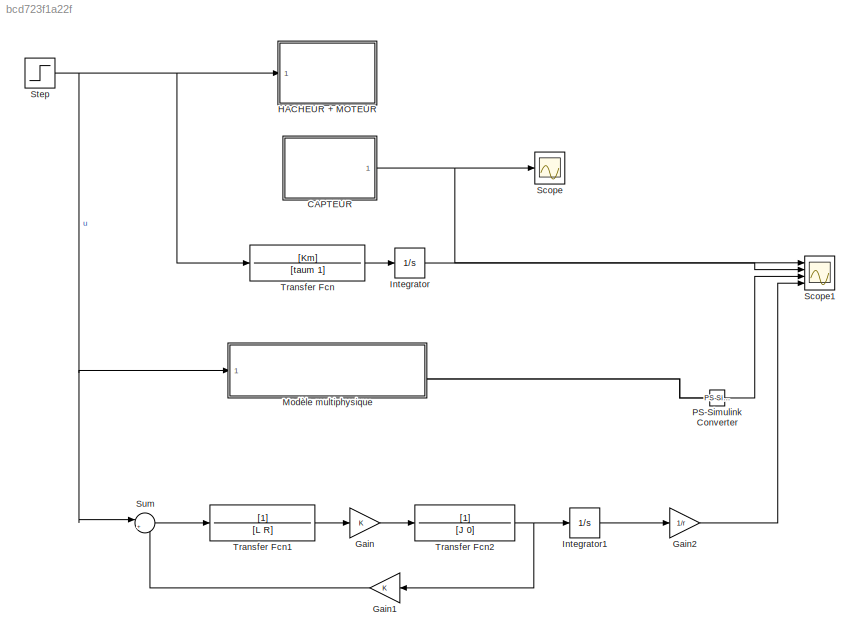
MODEL slx_bcd723f1a22f
KIND model
CONFIG AbsTol = auto
CONFIG EnableMultiTasking = on
CONFIG FixedStep = 0.01
CONFIG MaxStep = auto
CONFIG MinStep = auto
CONFIG RelTol = 1e-3
CONFIG SampleTimeConstraint = Unconstrained
CONFIG SolverName = VariableStepAuto
CONFIG StartTime = 0.0
CONFIG StopTime = 1.5
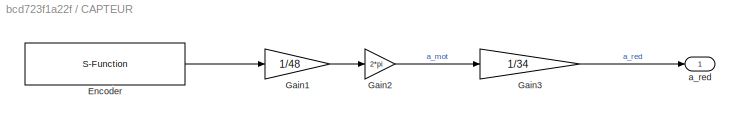
BLOCK [SubSystem] CAPTEUR
  Commented = on
  Ports = [0, 1]
  RequestExecContextInheritance = off
BLOCK [S-Function] CAPTEUR/Encoder
  CopyFcn = set_param(gcbh,'LinkStatus','none')
  EnableBusSupport = off
  FunctionName = sfcn_encoder
  InitFcn = try, set_param(gcb,'FunctionName','sfcn_encoder'), end
  OpenFcn = sfunctionwizard(gcbh)
  Parameters = uint8(0),uint8(2),uint8(3)
  Ports = [0, 1]
  PreSaveFcn = try, set_param(gcb,'FunctionName','sfcn_encoder'), end
  SFcnIsStateOwnerBlock = off
  SFunctionDeploymentMode = off
  SFunctionModules = sfcn_encoder_wrapper
BLOCK [Gain] CAPTEUR/Gain1
  Gain = 1/48
BLOCK [Gain] CAPTEUR/Gain2
  Gain = 2*pi
BLOCK [Gain] CAPTEUR/Gain3
  Gain = 1/34
BLOCK [Outport] CAPTEUR/a_red
BLOCK [Gain] Gain
  Gain = K
BLOCK [Gain] Gain1
  Gain = K
  NameLocation = top
BLOCK [Gain] Gain2
  Gain = 1/r
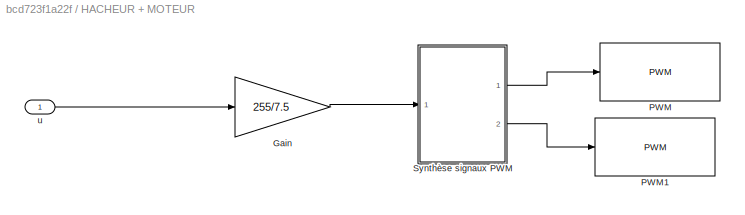
BLOCK [SubSystem] HACHEUR + MOTEUR
  Commented = on
  Ports = [1]
  RequestExecContextInheritance = off
BLOCK [Gain] HACHEUR + MOTEUR/Gain
  Gain = 255/7.5
BLOCK [Reference] HACHEUR + MOTEUR/PWM  REF=arduinolib/PWM
  Ports = [1]
  SourceBlock = arduinolib/PWM
  SourceProductBaseCode = ARDUINO
  SourceType = Arduino PWM
BLOCK [Reference] HACHEUR + MOTEUR/PWM1  REF=arduinolib/PWM
  Ports = [1]
  SourceBlock = arduinolib/PWM
  SourceProductBaseCode = ARDUINO
  SourceType = Arduino PWM
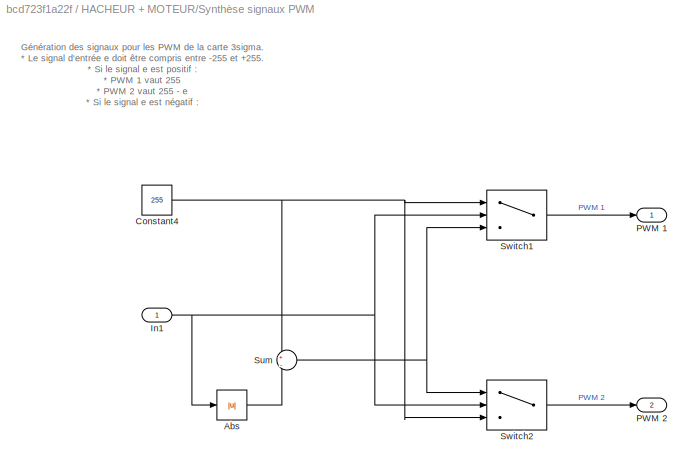
BLOCK [SubSystem] HACHEUR + MOTEUR/Synthèse signaux PWM
  Ports = [1, 2]
  RequestExecContextInheritance = off
BLOCK [Abs] HACHEUR + MOTEUR/Synthèse signaux PWM/Abs
  SaturateOnIntegerOverflow = off
BLOCK [Constant] HACHEUR + MOTEUR/Synthèse signaux PWM/Constant4
  Value = 255
BLOCK [Inport] HACHEUR + MOTEUR/Synthèse signaux PWM/In1
BLOCK [Outport] HACHEUR + MOTEUR/Synthèse signaux PWM/PWM 1
BLOCK [Outport] HACHEUR + MOTEUR/Synthèse signaux PWM/PWM 2
  Port = 2
BLOCK [Sum] HACHEUR + MOTEUR/Synthèse signaux PWM/Sum
  Inputs = +|-
  Ports = [2, 1]
BLOCK [Switch] HACHEUR + MOTEUR/Synthèse signaux PWM/Switch1
  Criteria = u2 > Threshold
  InputSameDT = off
  SaturateOnIntegerOverflow = off
BLOCK [Switch] HACHEUR + MOTEUR/Synthèse signaux PWM/Switch2
  Criteria = u2 > Threshold
  InputSameDT = off
  SaturateOnIntegerOverflow = off
BLOCK [Inport] HACHEUR + MOTEUR/u
BLOCK [Integrator] Integrator
  Ports = [1, 1]
BLOCK [Integrator] Integrator1
  Ports = [1, 1]
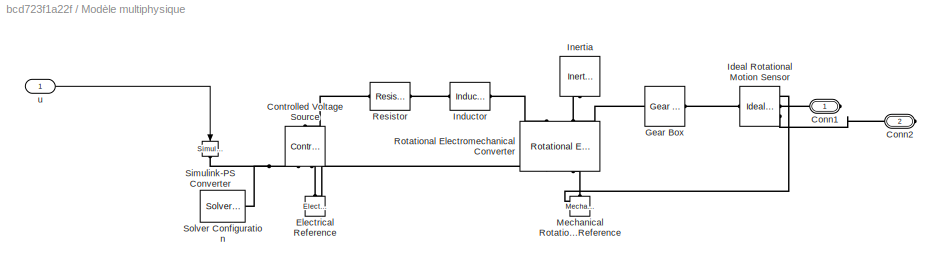
BLOCK [SubSystem] Modèle multiphysique
  Ports = [1, 0, 0, 0, 0, 0, 2]
  RequestExecContextInheritance = off
BLOCK [PMIOPort] Modèle multiphysique/Conn1
  Side = Right
BLOCK [PMIOPort] Modèle multiphysique/Conn2
  Port = 2
  Side = Right
BLOCK [Reference] Modèle multiphysique/Controlled Voltage Source  REF=fl_lib/Electrical/Electrical Sources/Controlled Voltage
Source
  NameLocation = right
  Ports = [0, 0, 0, 0, 0, 1, 2]
  SourceBlock = fl_lib/Electrical/Electrical Sources/Controlled Voltage\nSource
  SourceProductBaseCode = SS
  SourceType = Controlled Voltage\nSource
BLOCK [Reference] Modèle multiphysique/Electrical Reference  REF=fl_lib/Electrical/Electrical Elements/Electrical Reference
  NameLocation = right
  Ports = [0, 0, 0, 0, 0, 1]
  SourceBlock = fl_lib/Electrical/Electrical Elements/Electrical Reference
  SourceProductBaseCode = SS
  SourceType = Electrical Reference
BLOCK [Reference] Modèle multiphysique/Gear Box  REF=fl_lib/Mechanical/Mechanisms/Gear Box
  Ports = [0, 0, 0, 0, 0, 1, 1]
  SourceBlock = fl_lib/Mechanical/Mechanisms/Gear Box
  SourceProductBaseCode = SS
  SourceType = Gear Box
BLOCK [Reference] Modèle multiphysique/Ideal Rotational Motion Sensor  REF=fl_lib/Mechanical/Mechanical Sensors/Ideal Rotational
Motion Sensor
  Ports = [0, 0, 0, 0, 0, 1, 3]
  SourceBlock = fl_lib/Mechanical/Mechanical Sensors/Ideal Rotational\nMotion Sensor
  SourceProductBaseCode = SS
  SourceType = Ideal Rotational\nMotion Sensor
BLOCK [Reference] Modèle multiphysique/Inductor  REF=ee_lib/Passive/Inductor
  Ports = [0, 0, 0, 0, 0, 1, 1]
  SourceBlock = ee_lib/Passive/Inductor
  SourceProductBaseCode = PS
  SourceType = Inductor
BLOCK [Reference] Modèle multiphysique/Inertia  REF=fl_lib/Mechanical/Rotational Elements/Inertia
  NameLocation = left
  Ports = [0, 0, 0, 0, 0, 1]
  SourceBlock = fl_lib/Mechanical/Rotational Elements/Inertia
  SourceProductBaseCode = SS
  SourceType = Inertia
BLOCK [Reference] Modèle multiphysique/Mechanical Rotational Reference  REF=fl_lib/Mechanical/Rotational Elements/Mechanical
Rotational Reference
  NameLocation = right
  Ports = [0, 0, 0, 0, 0, 1]
  SourceBlock = fl_lib/Mechanical/Rotational Elements/Mechanical\nRotational Reference
  SourceProductBaseCode = SS
  SourceType = Mechanical\nRotational Reference
BLOCK [Reference] Modèle multiphysique/Resistor  REF=fl_lib/Electrical/Electrical Elements/Resistor
  Ports = [0, 0, 0, 0, 0, 1, 1]
  SourceBlock = fl_lib/Electrical/Electrical Elements/Resistor
  SourceProductBaseCode = SS
  SourceType = Resistor
BLOCK [Reference] Modèle multiphysique/Rotational Electromechanical Converter  REF=fl_lib/Electrical/Electrical Elements/Rotational
Electromechanical
Converter
  NameLocation = right
  Ports = [0, 0, 0, 0, 0, 2, 2]
  SourceBlock = fl_lib/Electrical/Electrical Elements/Rotational\nElectromechanical\nConverter
  SourceProductBaseCode = SS
  SourceType = Rotational\nElectromechanical\nConverter
BLOCK [Reference] Modèle multiphysique/Simulink-PS Converter  REF=nesl_utility/Simulink-PS
Converter
  NameLocation = left
  Ports = [1, 0, 0, 0, 0, 0, 1]
  SourceBlock = nesl_utility/Simulink-PS\nConverter
  SourceProductBaseCode = PW,SS
  SourceType = Simulink-PS\nConverter
BLOCK [Reference] Modèle multiphysique/Solver Configuration  REF=nesl_utility/Solver
Configuration
  Ports = [0, 0, 0, 0, 0, 0, 1]
  SourceBlock = nesl_utility/Solver\nConfiguration
  SourceProductBaseCode = PW,SS
  SourceType = Solver\nConfiguration
BLOCK [Inport] Modèle multiphysique/u
BLOCK [Reference] PS-Simulink Converter  REF=nesl_utility/PS-Simulink
Converter
  Ports = [0, 1, 0, 0, 0, 1]
  SourceBlock = nesl_utility/PS-Simulink\nConverter
  SourceProductBaseCode = PW,SS
  SourceType = PS-Simulink\nConverter
BLOCK [Scope] Scope
  Floating = off
  NumInputPorts = 1
  Ports = [1]
  ScopeSpecificationString = Simulink.scopes.TimeScopeBlockCfg('CurrentConfiguration', extmgr.ConfigurationSet(extmgr.Configuration('Core','General UI',true),extmgr.Configuration('Core','Source UI',true),extmgr.Configuration('Sources','WiredSimulink',true,'DataLoggingVariableName','ScopeData1'),extmgr.Configuration('Visuals','Time Domain',true,'SerializedDisplays',{struct('MinYLimReal','-0.39694','MaxYLimReal','5.39617','YLab...<+1833ch>
BLOCK [Scope] Scope1
  Floating = off
  NumInputPorts = 4
  Ports = [4]
  ScopeSpecificationString = Simulink.scopes.TimeScopeBlockCfg('CurrentConfiguration', extmgr.ConfigurationSet(extmgr.Configuration('Core','General UI',true),extmgr.Configuration('Core','Source UI',true),extmgr.Configuration('Sources','WiredSimulink',true,'DataLoggingVariableName','ScopeData1'),extmgr.Configuration('Visuals','Time Domain',true,'SerializedDisplays',{struct('MinYLimReal','-2.93846','MaxYLimReal','26.44611','YLa...<+1524ch>
BLOCK [Step] Step
  After = 6
  SampleTime = 0.01
  Time = 0.2
BLOCK [Sum] Sum
  Inputs = |+-
  Ports = [2, 1]
BLOCK [TransferFcn] Transfer Fcn
  Denominator = [taum 1]
  Numerator = [Km]
  ParameterTunability = Unconstrained
BLOCK [TransferFcn] Transfer Fcn1
  Denominator = [L R]
BLOCK [TransferFcn] Transfer Fcn2
  Denominator = [J 0]
ANNOTATION HACHEUR + MOTEUR/Synthèse signaux PWM: Génération des signaux pour les PWM de la carte 3sigma. * Le signal d'entrée e doit être compris entre -255 et +255. * Si le signal e est positif : * PWM 1 vaut 255 * PWM 2 vaut 255 - e * Si le signal e est négatif : * PWM 1 vaut 255 - |e| * PWM 2 vaut 255
LINE CAPTEUR/Encoder:1 -> CAPTEUR/Gain1:1
LINE CAPTEUR/Gain1:1 -> CAPTEUR/Gain2:1
LINE CAPTEUR/Gain2:1 -> CAPTEUR/Gain3:1
LINE CAPTEUR/Gain3:1 -> CAPTEUR/a_red:1
NET CAPTEUR:1 -> Scope1:1, Scope:1
LINE Gain1:1 -> Sum:2
LINE Gain2:1 -> Scope1:4
LINE Gain:1 -> Transfer Fcn2:1
LINE HACHEUR + MOTEUR/Gain:1 -> HACHEUR + MOTEUR/Synthèse signaux PWM:1
LINE HACHEUR + MOTEUR/Synthèse signaux PWM/Abs:1 -> HACHEUR + MOTEUR/Synthèse signaux PWM/Sum:2
NET HACHEUR + MOTEUR/Synthèse signaux PWM/Constant4:1 -> HACHEUR + MOTEUR/Synthèse signaux PWM/Sum:1, HACHEUR + MOTEUR/Synthèse signaux PWM/Switch1:1, HACHEUR + MOTEUR/Synthèse signaux PWM/Switch2:3
NET HACHEUR + MOTEUR/Synthèse signaux PWM/In1:1 -> HACHEUR + MOTEUR/Synthèse signaux PWM/Abs:1, HACHEUR + MOTEUR/Synthèse signaux PWM/Switch1:2, HACHEUR + MOTEUR/Synthèse signaux PWM/Switch2:2
NET HACHEUR + MOTEUR/Synthèse signaux PWM/Sum:1 -> HACHEUR + MOTEUR/Synthèse signaux PWM/Switch1:3, HACHEUR + MOTEUR/Synthèse signaux PWM/Switch2:1
LINE HACHEUR + MOTEUR/Synthèse signaux PWM/Switch1:1 -> HACHEUR + MOTEUR/Synthèse signaux PWM/PWM 1:1
LINE HACHEUR + MOTEUR/Synthèse signaux PWM/Switch2:1 -> HACHEUR + MOTEUR/Synthèse signaux PWM/PWM 2:1
LINE HACHEUR + MOTEUR/Synthèse signaux PWM:1 -> HACHEUR + MOTEUR/PWM:1
LINE HACHEUR + MOTEUR/Synthèse signaux PWM:2 -> HACHEUR + MOTEUR/PWM1:1
LINE HACHEUR + MOTEUR/u:1 -> HACHEUR + MOTEUR/Gain:1
LINE Integrator1:1 -> Gain2:1
LINE Integrator:1 -> Scope1:2
LINE Modèle multiphysique/u:1 -> Modèle multiphysique/Simulink-PS Converter:1
LINE PS-Simulink Converter:1 -> Scope1:3
NET Step:1 -> HACHEUR + MOTEUR:1, Modèle multiphysique:1, Sum:1, Transfer Fcn:1
LINE Sum:1 -> Transfer Fcn1:1
LINE Transfer Fcn1:1 -> Gain:1
NET Transfer Fcn2:1 -> Gain1:1, Integrator1:1
LINE Transfer Fcn:1 -> Integrator:1
PLINE Modèle multiphysique/Conn1:RConn1 -- Modèle multiphysique/Ideal Rotational Motion Sensor:RConn2
PLINE Modèle multiphysique/Conn2:RConn1 -- Modèle multiphysique/Ideal Rotational Motion Sensor:RConn3
PLINE Modèle multiphysique/Controlled Voltage Source:LConn1 -- Modèle multiphysique/Resistor:LConn1
PNET net1: Modèle multiphysique/Controlled Voltage Source:RConn1 -- Modèle multiphysique/Simulink-PS Converter:RConn1 -- Modèle multiphysique/Solver Configuration:RConn1
PNET net2: Modèle multiphysique/Controlled Voltage Source:RConn2 -- Modèle multiphysique/Electrical Reference:LConn1 -- Modèle multiphysique/Rotational Electromechanical Converter:RConn1
PNET net3: Modèle multiphysique/Gear Box:LConn1 -- Modèle multiphysique/Inertia:LConn1 -- Modèle multiphysique/Rotational Electromechanical Converter:LConn2
PLINE Modèle multiphysique/Gear Box:RConn1 -- Modèle multiphysique/Ideal Rotational Motion Sensor:LConn1
PNET net4: Modèle multiphysique/Ideal Rotational Motion Sensor:RConn1 -- Modèle multiphysique/Mechanical Rotational Reference:LConn1 -- Modèle multiphysique/Rotational Electromechanical Converter:RConn2
PLINE Modèle multiphysique/Inductor:LConn1 -- Modèle multiphysique/Resistor:RConn1
PLINE Modèle multiphysique/Inductor:RConn1 -- Modèle multiphysique/Rotational Electromechanical Converter:LConn1
PLINE Modèle multiphysique:RConn2 -- PS-Simulink Converter:LConn1
note: NET lines group one-source signal fan-out (src -> all destinations, sorted); 1:1 wires keep LINE; PNET lines group multi-terminal physical nets as a canonical sorted terminal list (undirected conserving connections); 2-terminal nets keep the pairwise PLINE form
